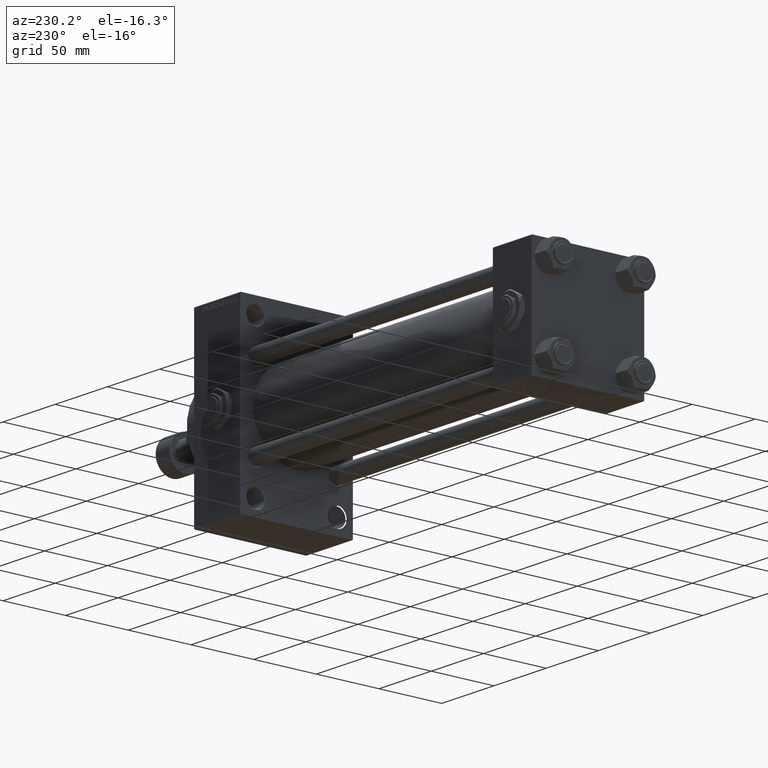
[diagram: clean part render]
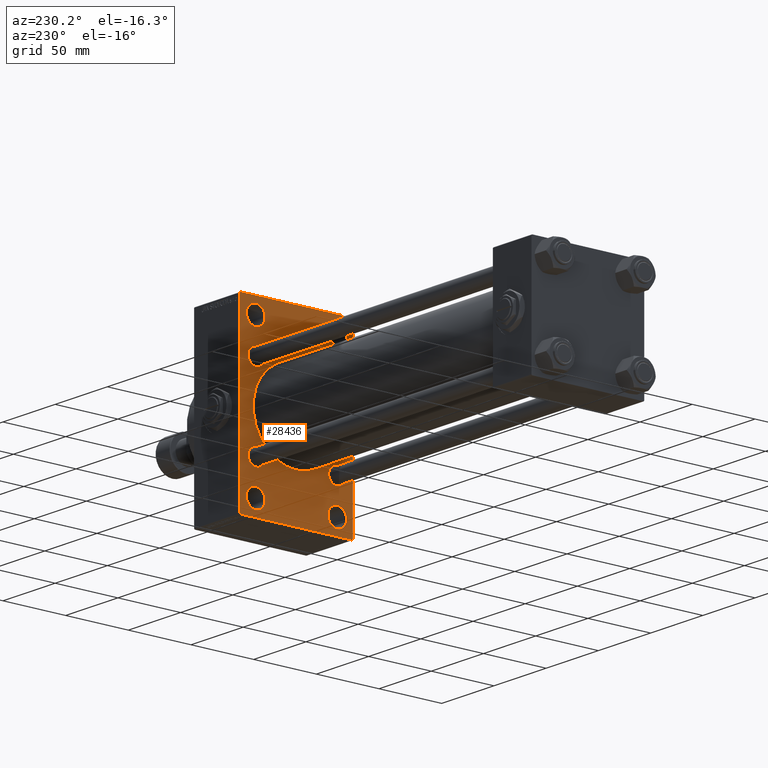
[diagram: same view with one face highlighted and labeled with its STEP entity id]
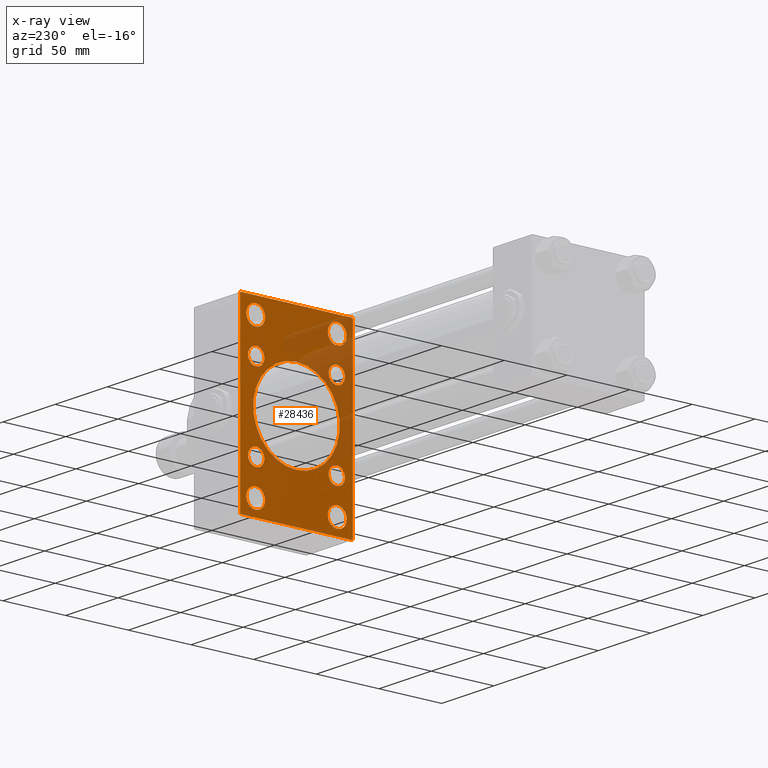
[diagram: x-ray of the same camera — body ghosted, the highlighted face saturated]
A machine part, auxiliary view. The second image highlights one B-rep face of the part: STEP entity #28436.
The next image is the same camera in x-ray: the body ghosted, the highlighted face saturated — about 24% of this face is hidden behind the body in this view.
In plain terms, the highlighted planar face has unit normal (-1, 0, 0).
Its self-contained STEP definition (entity closure, byte-faithful):
#349 = ORIENTED_EDGE ( 'NONE', *, *, #35709, .T. ) ;
#721 = VERTEX_POINT ( 'NONE', #36491 ) ;
#1232 = EDGE_CURVE ( 'NONE', #3813, #9656, #4155, .T. ) ;
#1444 = CIRCLE ( 'NONE', #21529, 7.500000000000062172 ) ;
#1604 = EDGE_CURVE ( 'NONE', #49342, #9799, #32298, .T. ) ;
#2085 = CIRCLE ( 'NONE', #40666, 6.499999999999999112 ) ;
#2260 = EDGE_LOOP ( 'NONE', ( #19788, #48722 ) ) ;
#2417 = VERTEX_POINT ( 'NONE', #3247 ) ;
#2568 = ORIENTED_EDGE ( 'NONE', *, *, #6846, .T. ) ;
#2567 = DIRECTION ( 'NONE',  ( 0.000000000000000000, 0.000000000000000000, -1.000000000000000000 ) ) ;
#2736 = VECTOR ( 'NONE', #19102, 1000.000000000000114 ) ;
#2931 = CARTESIAN_POINT ( 'NONE',  ( 278.9999999999999432, 44.50000000000006395, -70.99999999999998579 ) ) ;
#3247 = CARTESIAN_POINT ( 'NONE',  ( 278.9999999999999432, -32.50000000000000000, 66.00000000000007105 ) ) ;
#3361 = AXIS2_PLACEMENT_3D ( 'NONE', #19470, #30069, #45434 ) ;
#3452 = DIRECTION ( 'NONE',  ( 0.000000000000000000, 0.000000000000000000, 1.000000000000000000 ) ) ;
#3567 = CARTESIAN_POINT ( 'NONE',  ( 278.9999999999999432, 45.00000000000001421, -70.50000000000001421 ) ) ;
#3676 = AXIS2_PLACEMENT_3D ( 'NONE', #46174, #3882, #11670 ) ;
#3789 = EDGE_CURVE ( 'NONE', #32692, #27951, #21904, .T. ) ;
#3813 = VERTEX_POINT ( 'NONE', #12715 ) ;
#3882 = DIRECTION ( 'NONE',  ( 1.000000000000000000, -0.000000000000000000, 0.000000000000000000 ) ) ;
#4101 = DIRECTION ( 'NONE',  ( 0.000000000000000000, 0.000000000000000000, 1.000000000000000000 ) ) ;
#4155 = CIRCLE ( 'NONE', #31438, 7.500000000000069278 ) ;
#4650 = VERTEX_POINT ( 'NONE', #7733 ) ;
#4746 = CIRCLE ( 'NONE', #17568, 6.500000000000005329 ) ;
#4833 = CARTESIAN_POINT ( 'NONE',  ( 278.9999999999999432, -32.14999999999997726, -32.15000000000001279 ) ) ;
#4939 = CARTESIAN_POINT ( 'NONE',  ( 278.9999999999999432, -44.99999999999997158, -70.50000000000005684 ) ) ;
#5283 = EDGE_CURVE ( 'NONE', #30895, #4650, #38072, .T. ) ;
#5547 = CIRCLE ( 'NONE', #36079, 6.500000000000005329 ) ;
#5599 = CARTESIAN_POINT ( 'NONE',  ( 278.9999999999999432, 57.75000000000064659, -57.74999999999904077 ) ) ;
#5621 = CARTESIAN_POINT ( 'NONE',  ( 278.9999999999999432, -32.14999999999997726, 32.15000000000001279 ) ) ;
#6113 = DIRECTION ( 'NONE',  ( 0.000000000000000000, 0.000000000000000000, 1.000000000000000000 ) ) ;
#6235 = DIRECTION ( 'NONE',  ( 0.000000000000000000, 0.000000000000000000, 1.000000000000000000 ) ) ;
#6387 = EDGE_CURVE ( 'NONE', #47003, #18313, #7553, .T. ) ;
#6846 = EDGE_CURVE ( 'NONE', #36579, #721, #34109, .T. ) ;
#6966 = ORIENTED_EDGE ( 'NONE', *, *, #19019, .T. ) ;
#7140 = AXIS2_PLACEMENT_3D ( 'NONE', #8080, #39521, #12094 ) ;
#7231 = CARTESIAN_POINT ( 'NONE',  ( 278.9999999999999432, 32.14999999999999147, -32.15000000000000568 ) ) ;
#7363 = CARTESIAN_POINT ( 'NONE',  ( 278.9999999999999432, 44.50000000000002132, 71.00000000000000000 ) ) ;
#7390 = VERTEX_POINT ( 'NONE', #9091 ) ;
#7553 = LINE ( 'NONE', #14334, #2736 ) ;
#7733 = CARTESIAN_POINT ( 'NONE',  ( 278.9999999999999432, -32.14999999999997726, 25.65000000000000213 ) ) ;
#7784 = EDGE_LOOP ( 'NONE', ( #44193, #25019, #41579, #14171, #35926, #24837, #13812, #32012 ) ) ;
#7793 = CIRCLE ( 'NONE', #12580, 7.500000000000069278 ) ;
#7847 = EDGE_CURVE ( 'NONE', #47003, #14809, #10200, .T. ) ;
#7944 = DIRECTION ( 'NONE',  ( -1.000000000000000000, 0.000000000000000000, -0.000000000000000000 ) ) ;
#8080 = CARTESIAN_POINT ( 'NONE',  ( 278.9999999999999432, 32.14999999999999147, 32.15000000000000568 ) ) ;
#8155 = ORIENTED_EDGE ( 'NONE', *, *, #41852, .T. ) ;
#9091 = CARTESIAN_POINT ( 'NONE',  ( 278.9999999999999432, -32.14999999999997726, -38.65000000000001990 ) ) ;
#9173 = ORIENTED_EDGE ( 'NONE', *, *, #29826, .T. ) ;
#9279 = VERTEX_POINT ( 'NONE', #13993 ) ;
#9337 = EDGE_CURVE ( 'NONE', #38965, #14809, #21283, .T. ) ;
#9656 = VERTEX_POINT ( 'NONE', #24647 ) ;
#9705 = DIRECTION ( 'NONE',  ( 0.000000000000000000, -1.000000000000000000, -1.541976423090495633E-16 ) ) ;
#9799 = VERTEX_POINT ( 'NONE', #18322 ) ;
#9861 = CIRCLE ( 'NONE', #25169, 6.500000000000005329 ) ;
#10200 = LINE ( 'NONE', #30081, #12430 ) ;
#10211 = EDGE_LOOP ( 'NONE', ( #47573, #349 ) ) ;
#10433 = EDGE_CURVE ( 'NONE', #22601, #2417, #18923, .T. ) ;
#10776 = DIRECTION ( 'NONE',  ( 0.000000000000000000, 0.000000000000000000, 1.000000000000000000 ) ) ;
#11087 = EDGE_CURVE ( 'NONE', #39024, #9279, #2085, .T. ) ;
#11153 = DIRECTION ( 'NONE',  ( 1.000000000000000000, -0.000000000000000000, 0.000000000000000000 ) ) ;
#11263 = CARTESIAN_POINT ( 'NONE',  ( 278.9999999999999432, 32.50000000000000711, 66.00000000000007105 ) ) ;
#11468 = FACE_BOUND ( 'NONE', #24091, .T. ) ;
#11523 = CARTESIAN_POINT ( 'NONE',  ( 278.9999999999999432, -32.50000000000000000, -58.49999999999999289 ) ) ;
#11649 = VECTOR ( 'NONE', #26080, 999.9999999999998863 ) ;
#11670 = DIRECTION ( 'NONE',  ( 0.000000000000000000, 0.000000000000000000, 1.000000000000000000 ) ) ;
#12094 = DIRECTION ( 'NONE',  ( 0.000000000000000000, 0.000000000000000000, 1.000000000000000000 ) ) ;
#12252 = CARTESIAN_POINT ( 'NONE',  ( 278.9999999999999432, -2.602085213965210642E-15, 0.000000000000000000 ) ) ;
#12430 = VECTOR ( 'NONE', #25560, 1000.000000000000000 ) ;
#12580 = AXIS2_PLACEMENT_3D ( 'NONE', #11523, #45519, #10776 ) ;
#12715 = CARTESIAN_POINT ( 'NONE',  ( 278.9999999999999432, -32.50000000000000000, -50.99999999999992184 ) ) ;
#13812 = ORIENTED_EDGE ( 'NONE', *, *, #48934, .T. ) ;
#13857 = AXIS2_PLACEMENT_3D ( 'NONE', #17478, #32590, #21010 ) ;
#13858 = CARTESIAN_POINT ( 'NONE',  ( 278.9999999999999432, 32.14999999999999147, -38.65000000000001279 ) ) ;
#13993 = CARTESIAN_POINT ( 'NONE',  ( 278.9999999999999432, 32.14999999999999147, 25.65000000000000213 ) ) ;
#13998 = VERTEX_POINT ( 'NONE', #4939 ) ;
#14144 = ORIENTED_EDGE ( 'NONE', *, *, #10433, .T. ) ;
#14171 = ORIENTED_EDGE ( 'NONE', *, *, #9337, .T. ) ;
#14334 = CARTESIAN_POINT ( 'NONE',  ( 278.9999999999999432, 57.75000000000000000, 57.75000000000000000 ) ) ;
#14616 = EDGE_LOOP ( 'NONE', ( #6966, #25337 ) ) ;
#14629 = ORIENTED_EDGE ( 'NONE', *, *, #25423, .T. ) ;
#14739 = FACE_BOUND ( 'NONE', #10211, .T. ) ;
#14809 = VERTEX_POINT ( 'NONE', #32417 ) ;
#14968 = DIRECTION ( 'NONE',  ( 1.000000000000000000, -0.000000000000000000, 0.000000000000000000 ) ) ;
#15716 = ORIENTED_EDGE ( 'NONE', *, *, #26075, .T. ) ;
#15879 = CARTESIAN_POINT ( 'NONE',  ( 278.9999999999999432, -32.14999999999997726, -25.65000000000000568 ) ) ;
#16057 = AXIS2_PLACEMENT_3D ( 'NONE', #22396, #18147, #2567 ) ;
#17097 = CARTESIAN_POINT ( 'NONE',  ( 278.9999999999999432, 45.00000000000002132, 70.50000000000000000 ) ) ;
#17478 = CARTESIAN_POINT ( 'NONE',  ( 278.9999999999999432, -32.50000000000000000, 58.50000000000000711 ) ) ;
#17568 = AXIS2_PLACEMENT_3D ( 'NONE', #4833, #39312, #42844 ) ;
#18147 = DIRECTION ( 'NONE',  ( 1.000000000000000000, 0.000000000000000000, 0.000000000000000000 ) ) ;
#18313 = VERTEX_POINT ( 'NONE', #17097 ) ;
#18322 = CARTESIAN_POINT ( 'NONE',  ( 278.9999999999999432, 32.50000000000000711, -50.99999999999993605 ) ) ;
#18488 = ORIENTED_EDGE ( 'NONE', *, *, #30697, .T. ) ;
#18495 = FACE_BOUND ( 'NONE', #46484, .T. ) ;
#18696 = CARTESIAN_POINT ( 'NONE',  ( 278.9999999999999432, -2.602085213965210642E-15, 34.50000000000000000 ) ) ;
#18711 = CARTESIAN_POINT ( 'NONE',  ( 278.9999999999999432, 32.14999999999999147, 32.15000000000000568 ) ) ;
#18923 = CIRCLE ( 'NONE', #3676, 7.500000000000062172 ) ;
#19019 = EDGE_CURVE ( 'NONE', #9799, #49342, #1444, .T. ) ;
#19102 = DIRECTION ( 'NONE',  ( 0.000000000000000000, 0.7071067811865474617, -0.7071067811865474617 ) ) ;
#19470 = CARTESIAN_POINT ( 'NONE',  ( 278.9999999999999432, 32.50000000000000711, -58.50000000000000000 ) ) ;
#19637 = ORIENTED_EDGE ( 'NONE', *, *, #5283, .T. ) ;
#19786 = DIRECTION ( 'NONE',  ( 1.000000000000000000, 0.000000000000000000, 0.000000000000000000 ) ) ;
#19788 = ORIENTED_EDGE ( 'NONE', *, *, #21299, .T. ) ;
#19821 = DIRECTION ( 'NONE',  ( 0.000000000000000000, 0.000000000000000000, 1.000000000000000000 ) ) ;
#20104 = CARTESIAN_POINT ( 'NONE',  ( 278.9999999999999432, 32.50000000000000711, 58.50000000000000711 ) ) ;
#20562 = CARTESIAN_POINT ( 'NONE',  ( 278.9999999999999432, -32.14999999999997726, 32.15000000000001279 ) ) ;
#21010 = DIRECTION ( 'NONE',  ( 0.000000000000000000, 0.000000000000000000, 1.000000000000000000 ) ) ;
#21181 = DIRECTION ( 'NONE',  ( 0.000000000000000000, 0.000000000000000000, 1.000000000000000000 ) ) ;
#21283 = LINE ( 'NONE', #29340, #11649 ) ;
#21299 = EDGE_CURVE ( 'NONE', #40949, #7390, #4746, .T. ) ;
#21508 = DIRECTION ( 'NONE',  ( 0.000000000000000000, 0.000000000000000000, 1.000000000000000000 ) ) ;
#21529 = AXIS2_PLACEMENT_3D ( 'NONE', #28756, #48118, #21181 ) ;
#21615 = CIRCLE ( 'NONE', #16057, 34.50000000000000000 ) ;
#21904 = CIRCLE ( 'NONE', #37997, 6.500000000000005329 ) ;
#22184 = ORIENTED_EDGE ( 'NONE', *, *, #3789, .T. ) ;
#22386 = EDGE_CURVE ( 'NONE', #27951, #32692, #25772, .T. ) ;
#22396 = CARTESIAN_POINT ( 'NONE',  ( 278.9999999999999432, -2.602085213965210642E-15, 0.000000000000000000 ) ) ;
#22601 = VERTEX_POINT ( 'NONE', #34727 ) ;
#22608 = LINE ( 'NONE', #30409, #41632 ) ;
#22796 = FACE_BOUND ( 'NONE', #43601, .T. ) ;
#24068 = VECTOR ( 'NONE', #24673, 999.9999999999998863 ) ;
#24091 = EDGE_LOOP ( 'NONE', ( #2568, #15716 ) ) ;
#24214 = LINE ( 'NONE', #5599, #42906 ) ;
#24634 = DIRECTION ( 'NONE',  ( 0.000000000000000000, 0.000000000000000000, 1.000000000000000000 ) ) ;
#24647 = CARTESIAN_POINT ( 'NONE',  ( 278.9999999999999432, -32.50000000000000000, -66.00000000000005684 ) ) ;
#24673 = DIRECTION ( 'NONE',  ( 0.000000000000000000, -0.7071067811865574537, 0.7071067811865376918 ) ) ;
#24758 = AXIS2_PLACEMENT_3D ( 'NONE', #34860, #7944, #26578 ) ;
#24837 = ORIENTED_EDGE ( 'NONE', *, *, #6387, .T. ) ;
#25019 = ORIENTED_EDGE ( 'NONE', *, *, #36122, .T. ) ;
#25169 = AXIS2_PLACEMENT_3D ( 'NONE', #30771, #11153, #4101 ) ;
#25337 = ORIENTED_EDGE ( 'NONE', *, *, #1604, .T. ) ;
#25347 = DIRECTION ( 'NONE',  ( 1.000000000000000000, -0.000000000000000000, 0.000000000000000000 ) ) ;
#25423 = EDGE_CURVE ( 'NONE', #9656, #3813, #7793, .T. ) ;
#25429 = CARTESIAN_POINT ( 'NONE',  ( 278.9999999999999432, 32.14999999999999147, -32.15000000000000568 ) ) ;
#25560 = DIRECTION ( 'NONE',  ( 0.000000000000000000, -1.000000000000000000, -1.541976423090495387E-16 ) ) ;
#25772 = CIRCLE ( 'NONE', #32189, 6.500000000000005329 ) ;
#26074 = FACE_BOUND ( 'NONE', #14616, .T. ) ;
#26075 = EDGE_CURVE ( 'NONE', #721, #36579, #33478, .T. ) ;
#26080 = DIRECTION ( 'NONE',  ( -0.000000000000000000, 0.7071067811865425767, 0.7071067811865525687 ) ) ;
#26191 = DIRECTION ( 'NONE',  ( 0.000000000000000000, 0.000000000000000000, 1.000000000000000000 ) ) ;
#26332 = FACE_BOUND ( 'NONE', #2260, .T. ) ;
#26394 = CIRCLE ( 'NONE', #7140, 6.499999999999999112 ) ;
#26578 = DIRECTION ( 'NONE',  ( -0.000000000000000000, 0.000000000000000000, 1.000000000000000000 ) ) ;
#26831 = FACE_BOUND ( 'NONE', #26838, .T. ) ;
#26838 = EDGE_LOOP ( 'NONE', ( #47140, #9173 ) ) ;
#27471 = EDGE_CURVE ( 'NONE', #29462, #31806, #43208, .T. ) ;
#27951 = VERTEX_POINT ( 'NONE', #13858 ) ;
#28178 = EDGE_CURVE ( 'NONE', #38965, #13998, #22608, .T. ) ;
#28213 = LINE ( 'NONE', #43568, #24068 ) ;
#28436 = ADVANCED_FACE ( 'NONE', ( #49225, #18495, #26074, #11468, #30594, #26831, #22796, #26332, #14739, #45199 ), #41934, .T. ) ;
#28756 = CARTESIAN_POINT ( 'NONE',  ( 278.9999999999999432, 32.50000000000000711, -58.50000000000000000 ) ) ;
#28978 = ORIENTED_EDGE ( 'NONE', *, *, #22386, .T. ) ;
#29076 = CARTESIAN_POINT ( 'NONE',  ( 278.9999999999999432, 32.14999999999999147, -25.64999999999999858 ) ) ;
#29340 = CARTESIAN_POINT ( 'NONE',  ( 278.9999999999999432, -57.75000000000031264, 57.74999999999950973 ) ) ;
#29457 = AXIS2_PLACEMENT_3D ( 'NONE', #20104, #35221, #24634 ) ;
#29462 = VERTEX_POINT ( 'NONE', #18696 ) ;
#29826 = EDGE_CURVE ( 'NONE', #9279, #39024, #26394, .T. ) ;
#30069 = DIRECTION ( 'NONE',  ( 1.000000000000000000, -0.000000000000000000, 0.000000000000000000 ) ) ;
#30081 = CARTESIAN_POINT ( 'NONE',  ( 278.9999999999999432, 45.00000000000002132, 71.00000000000000000 ) ) ;
#30313 = VERTEX_POINT ( 'NONE', #3567 ) ;
#30409 = CARTESIAN_POINT ( 'NONE',  ( 278.9999999999999432, -44.99999999999997158, 70.99999999999998579 ) ) ;
#30594 = FACE_BOUND ( 'NONE', #44450, .T. ) ;
#30697 = EDGE_CURVE ( 'NONE', #4650, #30895, #5547, .T. ) ;
#30771 = CARTESIAN_POINT ( 'NONE',  ( 278.9999999999999432, -32.14999999999997726, -32.15000000000001279 ) ) ;
#30874 = AXIS2_PLACEMENT_3D ( 'NONE', #33588, #14968, #21508 ) ;
#30895 = VERTEX_POINT ( 'NONE', #41456 ) ;
#31172 = DIRECTION ( 'NONE',  ( 1.000000000000000000, -0.000000000000000000, 0.000000000000000000 ) ) ;
#31438 = AXIS2_PLACEMENT_3D ( 'NONE', #44480, #25347, #6235 ) ;
#31686 = DIRECTION ( 'NONE',  ( 0.000000000000000000, -4.886545002751570165E-17, -1.000000000000000000 ) ) ;
#31806 = VERTEX_POINT ( 'NONE', #32586 ) ;
#31865 = LINE ( 'NONE', #35895, #39422 ) ;
#32012 = ORIENTED_EDGE ( 'NONE', *, *, #45253, .T. ) ;
#32189 = AXIS2_PLACEMENT_3D ( 'NONE', #25429, #33215, #26191 ) ;
#32298 = CIRCLE ( 'NONE', #3361, 7.500000000000062172 ) ;
#32417 = CARTESIAN_POINT ( 'NONE',  ( 278.9999999999999432, -44.50000000000000711, 70.99999999999998579 ) ) ;
#32586 = CARTESIAN_POINT ( 'NONE',  ( 278.9999999999999432, 1.622946243093158675E-15, -34.50000000000000000 ) ) ;
#32590 = DIRECTION ( 'NONE',  ( 1.000000000000000000, -0.000000000000000000, 0.000000000000000000 ) ) ;
#32692 = VERTEX_POINT ( 'NONE', #29076 ) ;
#33007 = VERTEX_POINT ( 'NONE', #2931 ) ;
#33215 = DIRECTION ( 'NONE',  ( 1.000000000000000000, -0.000000000000000000, 0.000000000000000000 ) ) ;
#33478 = CIRCLE ( 'NONE', #29457, 7.500000000000062172 ) ;
#33588 = CARTESIAN_POINT ( 'NONE',  ( 278.9999999999999432, 32.50000000000000711, 58.50000000000000711 ) ) ;
#34067 = AXIS2_PLACEMENT_3D ( 'NONE', #5621, #43633, #6113 ) ;
#34109 = CIRCLE ( 'NONE', #30874, 7.500000000000062172 ) ;
#34727 = CARTESIAN_POINT ( 'NONE',  ( 278.9999999999999432, -32.50000000000000000, 50.99999999999995026 ) ) ;
#34860 = CARTESIAN_POINT ( 'NONE',  ( 278.9999999999999432, 0.000000000000000000, 0.000000000000000000 ) ) ;
#35155 = DIRECTION ( 'NONE',  ( 0.000000000000000000, 0.000000000000000000, -1.000000000000000000 ) ) ;
#35221 = DIRECTION ( 'NONE',  ( 1.000000000000000000, -0.000000000000000000, 0.000000000000000000 ) ) ;
#35285 = CARTESIAN_POINT ( 'NONE',  ( 278.9999999999999432, -44.50000000000000000, -71.00000000000000000 ) ) ;
#35709 = EDGE_CURVE ( 'NONE', #31806, #29462, #21615, .T. ) ;
#35895 = CARTESIAN_POINT ( 'NONE',  ( 278.9999999999999432, 45.00000000000001421, -70.99999999999998579 ) ) ;
#35926 = ORIENTED_EDGE ( 'NONE', *, *, #7847, .F. ) ;
#36079 = AXIS2_PLACEMENT_3D ( 'NONE', #20562, #31172, #19821 ) ;
#36122 = EDGE_CURVE ( 'NONE', #42329, #13998, #28213, .T. ) ;
#36154 = CARTESIAN_POINT ( 'NONE',  ( 278.9999999999999432, 32.50000000000000711, -66.00000000000005684 ) ) ;
#36491 = CARTESIAN_POINT ( 'NONE',  ( 278.9999999999999432, 32.50000000000000711, 50.99999999999995026 ) ) ;
#36579 = VERTEX_POINT ( 'NONE', #11263 ) ;
#37415 = CARTESIAN_POINT ( 'NONE',  ( 278.9999999999999432, 32.14999999999999147, 38.65000000000001279 ) ) ;
#37930 = DIRECTION ( 'NONE',  ( 1.000000000000000000, -0.000000000000000000, 0.000000000000000000 ) ) ;
#37965 = DIRECTION ( 'NONE',  ( 0.000000000000000000, 0.000000000000000000, -1.000000000000000000 ) ) ;
#37997 = AXIS2_PLACEMENT_3D ( 'NONE', #7231, #37930, #3452 ) ;
#38072 = CIRCLE ( 'NONE', #34067, 6.500000000000005329 ) ;
#38541 = EDGE_CURVE ( 'NONE', #33007, #42329, #31865, .T. ) ;
#38965 = VERTEX_POINT ( 'NONE', #38969 ) ;
#38969 = CARTESIAN_POINT ( 'NONE',  ( 278.9999999999999432, -44.99999999999997158, 70.50000000000002842 ) ) ;
#39024 = VERTEX_POINT ( 'NONE', #37415 ) ;
#39312 = DIRECTION ( 'NONE',  ( 1.000000000000000000, -0.000000000000000000, 0.000000000000000000 ) ) ;
#39422 = VECTOR ( 'NONE', #9705, 1000.000000000000000 ) ;
#39521 = DIRECTION ( 'NONE',  ( 1.000000000000000000, -0.000000000000000000, 0.000000000000000000 ) ) ;
#40558 = DIRECTION ( 'NONE',  ( -0.000000000000000000, -0.7071067811865376918, -0.7071067811865573427 ) ) ;
#40666 = AXIS2_PLACEMENT_3D ( 'NONE', #18711, #40886, #41897 ) ;
#40886 = DIRECTION ( 'NONE',  ( 1.000000000000000000, -0.000000000000000000, 0.000000000000000000 ) ) ;
#40949 = VERTEX_POINT ( 'NONE', #15879 ) ;
#41109 = EDGE_LOOP ( 'NONE', ( #8155, #14144 ) ) ;
#41285 = VECTOR ( 'NONE', #31686, 1000.000000000000000 ) ;
#41456 = CARTESIAN_POINT ( 'NONE',  ( 278.9999999999999432, -32.14999999999997726, 38.65000000000002700 ) ) ;
#41579 = ORIENTED_EDGE ( 'NONE', *, *, #28178, .F. ) ;
#41632 = VECTOR ( 'NONE', #37965, 1000.000000000000000 ) ;
#41852 = EDGE_CURVE ( 'NONE', #2417, #22601, #44398, .T. ) ;
#41897 = DIRECTION ( 'NONE',  ( 0.000000000000000000, 0.000000000000000000, 1.000000000000000000 ) ) ;
#41934 = PLANE ( 'NONE',  #24758 ) ;
#42329 = VERTEX_POINT ( 'NONE', #35285 ) ;
#42844 = DIRECTION ( 'NONE',  ( 0.000000000000000000, 0.000000000000000000, 1.000000000000000000 ) ) ;
#42906 = VECTOR ( 'NONE', #40558, 1000.000000000000114 ) ;
#43208 = CIRCLE ( 'NONE', #46449, 34.50000000000000000 ) ;
#43533 = CARTESIAN_POINT ( 'NONE',  ( 278.9999999999999432, 45.00000000000002132, 71.00000000000000000 ) ) ;
#43568 = CARTESIAN_POINT ( 'NONE',  ( 278.9999999999999432, -57.74999999999938893, -57.75000000000100187 ) ) ;
#43601 = EDGE_LOOP ( 'NONE', ( #22184, #28978 ) ) ;
#43633 = DIRECTION ( 'NONE',  ( 1.000000000000000000, -0.000000000000000000, 0.000000000000000000 ) ) ;
#43730 = ORIENTED_EDGE ( 'NONE', *, *, #1232, .T. ) ;
#44193 = ORIENTED_EDGE ( 'NONE', *, *, #38541, .T. ) ;
#44398 = CIRCLE ( 'NONE', #13857, 7.500000000000062172 ) ;
#44450 = EDGE_LOOP ( 'NONE', ( #19637, #18488 ) ) ;
#44480 = CARTESIAN_POINT ( 'NONE',  ( 278.9999999999999432, -32.50000000000000000, -58.49999999999999289 ) ) ;
#45199 = FACE_OUTER_BOUND ( 'NONE', #7784, .T. ) ;
#45253 = EDGE_CURVE ( 'NONE', #30313, #33007, #24214, .T. ) ;
#45434 = DIRECTION ( 'NONE',  ( 0.000000000000000000, 0.000000000000000000, 1.000000000000000000 ) ) ;
#45519 = DIRECTION ( 'NONE',  ( 1.000000000000000000, -0.000000000000000000, 0.000000000000000000 ) ) ;
#46174 = CARTESIAN_POINT ( 'NONE',  ( 278.9999999999999432, -32.50000000000000000, 58.50000000000000711 ) ) ;
#46449 = AXIS2_PLACEMENT_3D ( 'NONE', #12252, #19786, #35155 ) ;
#46484 = EDGE_LOOP ( 'NONE', ( #43730, #14629 ) ) ;
#46816 = LINE ( 'NONE', #43533, #41285 ) ;
#47003 = VERTEX_POINT ( 'NONE', #7363 ) ;
#47140 = ORIENTED_EDGE ( 'NONE', *, *, #11087, .T. ) ;
#47573 = ORIENTED_EDGE ( 'NONE', *, *, #27471, .T. ) ;
#47655 = EDGE_CURVE ( 'NONE', #7390, #40949, #9861, .T. ) ;
#48118 = DIRECTION ( 'NONE',  ( 1.000000000000000000, -0.000000000000000000, 0.000000000000000000 ) ) ;
#48722 = ORIENTED_EDGE ( 'NONE', *, *, #47655, .T. ) ;
#48934 = EDGE_CURVE ( 'NONE', #18313, #30313, #46816, .T. ) ;
#49225 = FACE_BOUND ( 'NONE', #41109, .T. ) ;
#49342 = VERTEX_POINT ( 'NONE', #36154 ) ;